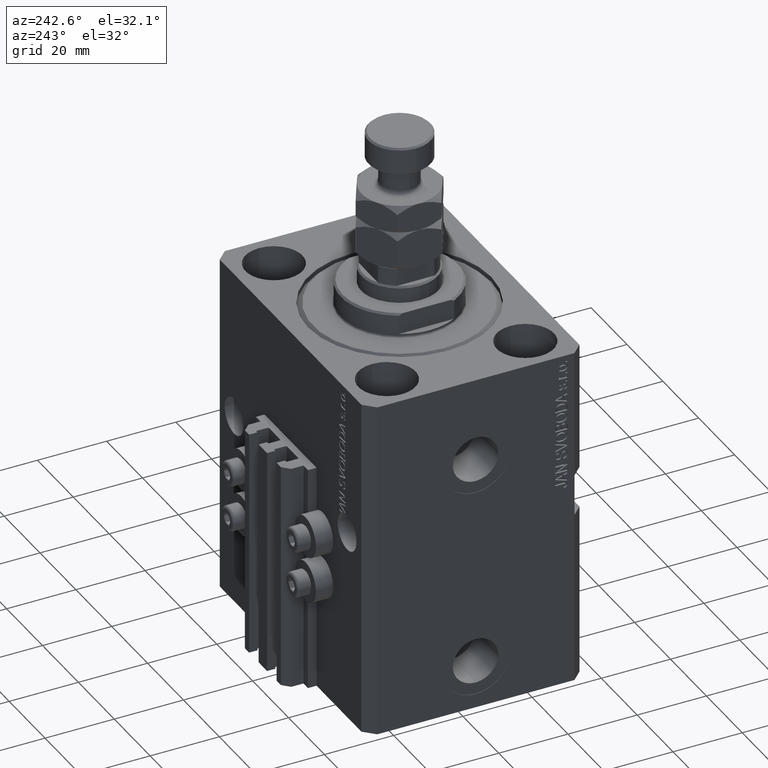
[diagram: clean part render]
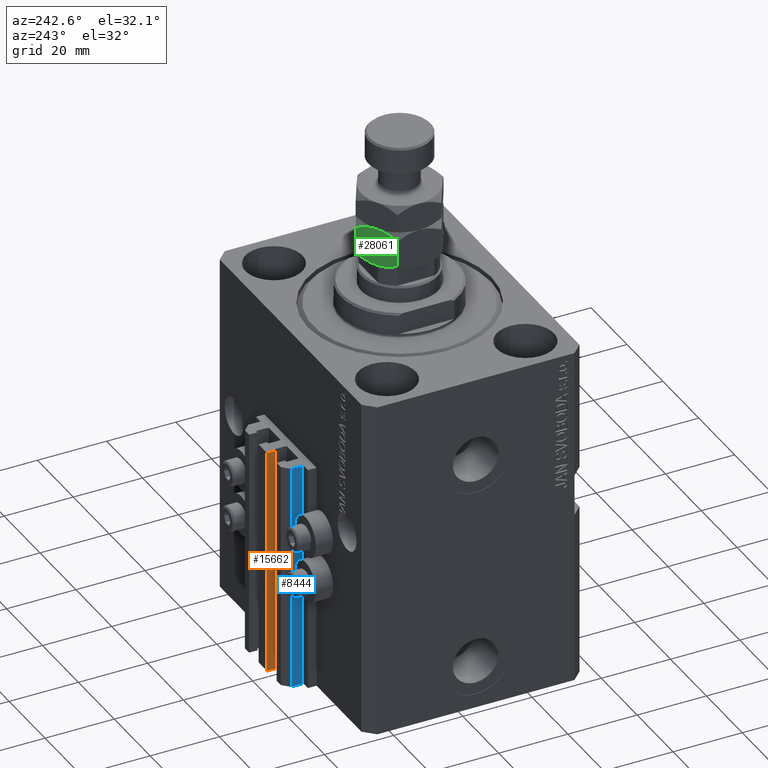
[diagram: same view with three faces highlighted in distinct colors, each labeled with its STEP entity id]
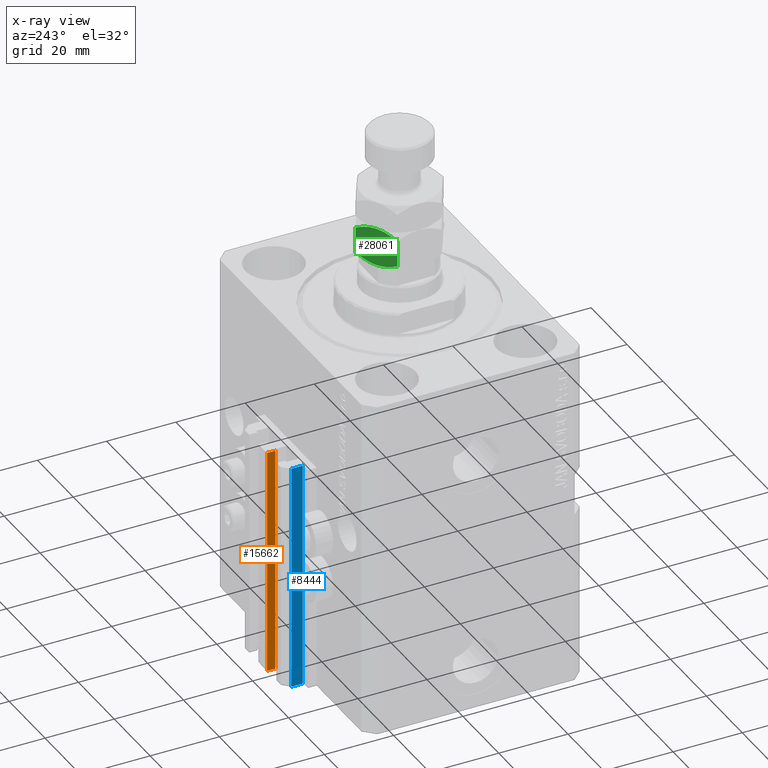
[diagram: x-ray of the same camera — body ghosted, the three highlighted faces saturated]
A machine part, auxiliary view with three faces highlighted in distinct colors.
The next image is the same camera in x-ray (body ghosted, the three faces saturated) — at least one of them is partly hidden behind the body in this view.
Their STEP definitions:

[orange] entity #15662 — the highlighted planar face has unit normal (-1, -0, 0).
#4268 = CARTESIAN_POINT ( 'NONE',  ( -2.350000000000003197, 37.10000000000000853, -33.00000000000000000 ) ) ;
#5549 = EDGE_CURVE ( 'NONE', #37249, #19662, #29933, .T. ) ;
#7285 = CARTESIAN_POINT ( 'NONE',  ( -2.350000000000003642, 39.50000000000000711, -99.00000000000000000 ) ) ;
#8761 = CARTESIAN_POINT ( 'NONE',  ( -2.350000000000003197, 37.10000000000000853, -99.00000000000000000 ) ) ;
#8820 = LINE ( 'NONE', #46186, #40017 ) ;
#10966 = DIRECTION ( 'NONE',  ( 1.807003620809174632E-16, -1.000000000000000000, 0.000000000000000000 ) ) ;
#11251 = CARTESIAN_POINT ( 'NONE',  ( -2.350000000000003642, 39.50000000000000711, -33.00000000000000000 ) ) ;
#12090 = ORIENTED_EDGE ( 'NONE', *, *, #35290, .F. ) ;
#13441 = CARTESIAN_POINT ( 'NONE',  ( -2.350000000000003197, 37.10000000000000853, -99.00000000000000000 ) ) ;
#14024 = EDGE_CURVE ( 'NONE', #19662, #31939, #36079, .T. ) ;
#14848 = CARTESIAN_POINT ( 'NONE',  ( -2.350000000000003642, 39.50000000000000711, -99.00000000000000000 ) ) ;
#15623 = VECTOR ( 'NONE', #28937, 1000.000000000000000 ) ;
#15662 = ADVANCED_FACE ( 'NONE', ( #45320 ), #30111, .T. ) ;
#17167 = AXIS2_PLACEMENT_3D ( 'NONE', #45077, #33353, #10966 ) ;
#17184 = DIRECTION ( 'NONE',  ( 0.000000000000000000, 0.000000000000000000, 1.000000000000000000 ) ) ;
#19288 = VECTOR ( 'NONE', #22971, 1000.000000000000000 ) ;
#19662 = VERTEX_POINT ( 'NONE', #8761 ) ;
#21498 = VERTEX_POINT ( 'NONE', #11251 ) ;
#22971 = DIRECTION ( 'NONE',  ( 0.000000000000000000, 0.000000000000000000, 1.000000000000000000 ) ) ;
#23213 = CARTESIAN_POINT ( 'NONE',  ( -2.350000000000003642, 39.50000000000000711, -99.00000000000000000 ) ) ;
#27102 = ORIENTED_EDGE ( 'NONE', *, *, #5549, .T. ) ;
#28937 = DIRECTION ( 'NONE',  ( 1.807003620809174632E-16, -1.000000000000000000, 0.000000000000000000 ) ) ;
#29571 = EDGE_LOOP ( 'NONE', ( #12090, #40795, #27102, #47385 ) ) ;
#29933 = LINE ( 'NONE', #7285, #15623 ) ;
#30111 = PLANE ( 'NONE',  #17167 ) ;
#30665 = VECTOR ( 'NONE', #17184, 1000.000000000000000 ) ;
#30914 = LINE ( 'NONE', #23213, #19288 ) ;
#31478 = DIRECTION ( 'NONE',  ( 1.807003620809174632E-16, -1.000000000000000000, 0.000000000000000000 ) ) ;
#31939 = VERTEX_POINT ( 'NONE', #4268 ) ;
#33353 = DIRECTION ( 'NONE',  ( -1.000000000000000000, -1.807003620809174632E-16, 0.000000000000000000 ) ) ;
#35290 = EDGE_CURVE ( 'NONE', #21498, #31939, #8820, .T. ) ;
#36079 = LINE ( 'NONE', #13441, #30665 ) ;
#37249 = VERTEX_POINT ( 'NONE', #14848 ) ;
#40017 = VECTOR ( 'NONE', #31478, 1000.000000000000000 ) ;
#40795 = ORIENTED_EDGE ( 'NONE', *, *, #45574, .F. ) ;
#45077 = CARTESIAN_POINT ( 'NONE',  ( -2.350000000000003642, 39.50000000000000711, -99.00000000000000000 ) ) ;
#45320 = FACE_OUTER_BOUND ( 'NONE', #29571, .T. ) ;
#45574 = EDGE_CURVE ( 'NONE', #37249, #21498, #30914, .T. ) ;
#46186 = CARTESIAN_POINT ( 'NONE',  ( -2.350000000000003642, 39.50000000000000711, -33.00000000000000000 ) ) ;
#47385 = ORIENTED_EDGE ( 'NONE', *, *, #14024, .T. ) ;

[blue] entity #8444 — the highlighted planar face has unit normal (-1, 0, 0).
#2843 = CARTESIAN_POINT ( 'NONE',  ( -12.00000000000000000, 34.19999999999999574, -99.00000000000000000 ) ) ;
#3092 = PLANE ( 'NONE',  #48277 ) ;
#3985 = LINE ( 'NONE', #19177, #35346 ) ;
#5786 = VECTOR ( 'NONE', #11078, 1000.000000000000000 ) ;
#6079 = FACE_OUTER_BOUND ( 'NONE', #34976, .T. ) ;
#6487 = CARTESIAN_POINT ( 'NONE',  ( -12.00000000000000000, 34.19999999999999574, -33.00000000000000000 ) ) ;
#8444 = ADVANCED_FACE ( 'NONE', ( #6079 ), #3092, .T. ) ;
#9096 = DIRECTION ( 'NONE',  ( 0.000000000000000000, -1.000000000000000000, 0.000000000000000000 ) ) ;
#9363 = CARTESIAN_POINT ( 'NONE',  ( -12.00000000000000000, 37.49999999999999289, -99.00000000000000000 ) ) ;
#11078 = DIRECTION ( 'NONE',  ( 0.000000000000000000, -1.000000000000000000, 0.000000000000000000 ) ) ;
#11677 = EDGE_CURVE ( 'NONE', #19115, #37576, #3985, .T. ) ;
#13886 = CARTESIAN_POINT ( 'NONE',  ( -12.00000000000000000, 34.19999999999999574, -99.00000000000000000 ) ) ;
#14679 = VERTEX_POINT ( 'NONE', #13886 ) ;
#16478 = VERTEX_POINT ( 'NONE', #6487 ) ;
#17798 = CARTESIAN_POINT ( 'NONE',  ( -12.00000000000000000, 37.49999999999999289, -99.00000000000000000 ) ) ;
#19115 = VERTEX_POINT ( 'NONE', #9363 ) ;
#19177 = CARTESIAN_POINT ( 'NONE',  ( -12.00000000000000000, 37.49999999999999289, -99.00000000000000000 ) ) ;
#22143 = ORIENTED_EDGE ( 'NONE', *, *, #11677, .F. ) ;
#24624 = EDGE_CURVE ( 'NONE', #14679, #16478, #44178, .T. ) ;
#26134 = VECTOR ( 'NONE', #37197, 1000.000000000000000 ) ;
#28262 = LINE ( 'NONE', #43208, #34249 ) ;
#30232 = LINE ( 'NONE', #33218, #5786 ) ;
#32764 = EDGE_CURVE ( 'NONE', #19115, #14679, #28262, .T. ) ;
#33218 = CARTESIAN_POINT ( 'NONE',  ( -12.00000000000000000, 37.49999999999999289, -33.00000000000000000 ) ) ;
#33676 = CARTESIAN_POINT ( 'NONE',  ( -12.00000000000000000, 37.49999999999999289, -33.00000000000000000 ) ) ;
#34249 = VECTOR ( 'NONE', #9096, 1000.000000000000000 ) ;
#34657 = ORIENTED_EDGE ( 'NONE', *, *, #24624, .T. ) ;
#34976 = EDGE_LOOP ( 'NONE', ( #47525, #22143, #37878, #34657 ) ) ;
#35346 = VECTOR ( 'NONE', #41585, 1000.000000000000000 ) ;
#37197 = DIRECTION ( 'NONE',  ( 0.000000000000000000, 0.000000000000000000, 1.000000000000000000 ) ) ;
#37576 = VERTEX_POINT ( 'NONE', #33676 ) ;
#37878 = ORIENTED_EDGE ( 'NONE', *, *, #32764, .T. ) ;
#40442 = DIRECTION ( 'NONE',  ( 0.000000000000000000, 0.000000000000000000, 1.000000000000000000 ) ) ;
#41585 = DIRECTION ( 'NONE',  ( 0.000000000000000000, 0.000000000000000000, 1.000000000000000000 ) ) ;
#43208 = CARTESIAN_POINT ( 'NONE',  ( -12.00000000000000000, 37.49999999999999289, -99.00000000000000000 ) ) ;
#44178 = LINE ( 'NONE', #2843, #26134 ) ;
#45885 = EDGE_CURVE ( 'NONE', #37576, #16478, #30232, .T. ) ;
#47525 = ORIENTED_EDGE ( 'NONE', *, *, #45885, .F. ) ;
#48277 = AXIS2_PLACEMENT_3D ( 'NONE', #17798, #48910, #40442 ) ;
#48910 = DIRECTION ( 'NONE',  ( -1.000000000000000000, 0.000000000000000000, 0.000000000000000000 ) ) ;

[green] entity #28061 — the highlighted planar face has unit normal (0.5, -0.866, 0).
#33 = CARTESIAN_POINT ( 'NONE',  ( -9.255521992360788985, 7.358027808391769398, 0.7806233875467772920 ) ) ;
#89 = DIRECTION ( 'NONE',  ( 0.8660254037844389297, 0.4999999999999992784, 0.000000000000000000 ) ) ;
#577 = DIRECTION ( 'NONE',  ( 0.4999999999999993339, -0.8660254037844390407, 0.000000000000000000 ) ) ;
#598 = VERTEX_POINT ( 'NONE', #11866 ) ;
#647 = CARTESIAN_POINT ( 'NONE',  ( -11.00000000000000000, 6.350852961085890591, 11.00000000000000000 ) ) ;
#762 = EDGE_CURVE ( 'NONE', #10501, #41187, #10349, .T. ) ;
#2698 = ORIENTED_EDGE ( 'NONE', *, *, #33251, .F. ) ;
#2761 = VERTEX_POINT ( 'NONE', #45829 ) ;
#3195 = DIRECTION ( 'NONE',  ( -0.000000000000000000, -0.000000000000000000, -1.000000000000000000 ) ) ;
#3777 = CARTESIAN_POINT ( 'NONE',  ( -5.981709287746635795, 9.248164454677164414, 1.734723475976807094E-15 ) ) ;
#4119 = CARTESIAN_POINT ( 'NONE',  ( -5.499999999999990230, 9.526279441628824785, 11.00000000000000000 ) ) ;
#4152 = B_SPLINE_CURVE_WITH_KNOTS ( 'NONE', 3,
 ( #37048, #10418, #49005, #29576, #34046, #48268 ),
 .UNSPECIFIED., .F., .F.,
 ( 4, 2, 4 ),
 ( 0.006583488920348303831, 0.009852050593448711396, 0.01312061226654911809 ),
 .UNSPECIFIED. ) ;
#6653 = CARTESIAN_POINT ( 'NONE',  ( -3.579894028994817123, 10.63485314086127786, 10.79187792513292798 ) ) ;
#7755 = CARTESIAN_POINT ( 'NONE',  ( -7.884967580346608607, 8.149317767107183030, 0.3282192120904074417 ) ) ;
#7802 = ORIENTED_EDGE ( 'NONE', *, *, #14098, .F. ) ;
#8034 = ORIENTED_EDGE ( 'NONE', *, *, #26520, .F. ) ;
#10349 = B_SPLINE_CURVE_WITH_KNOTS ( 'NONE', 3,
 ( #45845, #37637, #33, #7755, #30155, #23424, #3777, #11988 ),
 .UNSPECIFIED., .F., .F.,
 ( 4, 2, 2, 4 ),
 ( 2.544311317612473652E-07, 0.003291871675740032539, 0.004937680298044168185, 0.006583488920348303831 ),
 .UNSPECIFIED. ) ;
#10418 = CARTESIAN_POINT ( 'NONE',  ( -4.543329525579419048, 10.07861339756131791, 1.768604793866978714E-15 ) ) ;
#10452 = LINE ( 'NONE', #647, #40985 ) ;
#10501 = VERTEX_POINT ( 'NONE', #13395 ) ;
#11799 = FACE_OUTER_BOUND ( 'NONE', #24191, .T. ) ;
#11866 = CARTESIAN_POINT ( 'NONE',  ( -11.00000000000000000, 6.350852961085890591, 9.298294077828234805 ) ) ;
#11988 = CARTESIAN_POINT ( 'NONE',  ( -5.499999999999992895, 9.526279441628830114, 0.000000000000000000 ) ) ;
#11996 = EDGE_CURVE ( 'NONE', #2761, #16912, #37298, .T. ) ;
#13395 = CARTESIAN_POINT ( 'NONE',  ( -11.00000000000000000, 6.350852961085892368, 1.701705922171765195 ) ) ;
#14098 = EDGE_CURVE ( 'NONE', #598, #10501, #10452, .T. ) ;
#14890 = CARTESIAN_POINT ( 'NONE',  ( -1.744478007639206130, 11.69453107486589083, 10.21937661245322637 ) ) ;
#15338 = CARTESIAN_POINT ( 'NONE',  ( -11.00000000000000000, 6.350852961085890591, 9.298294077828234805 ) ) ;
#16912 = VERTEX_POINT ( 'NONE', #35255 ) ;
#17830 = VERTEX_POINT ( 'NONE', #24117 ) ;
#18370 = CARTESIAN_POINT ( 'NONE',  ( -5.499999999999990230, 9.526279441628824785, 11.00000000000000000 ) ) ;
#19020 = PLANE ( 'NONE',  #30193 ) ;
#19211 = EDGE_CURVE ( 'NONE', #17830, #598, #37351, .T. ) ;
#23424 = CARTESIAN_POINT ( 'NONE',  ( -6.470625887979888802, 8.965888323921223702, 0.04365929743512723255 ) ) ;
#24117 = CARTESIAN_POINT ( 'NONE',  ( -5.499999999999990230, 9.526279441628824785, 11.00000000000000000 ) ) ;
#24191 = EDGE_LOOP ( 'NONE', ( #37513, #7802, #44581, #2698, #27848, #8034 ) ) ;
#25594 = CARTESIAN_POINT ( 'NONE',  ( -4.529374112020101428, 10.08667055933643830, 10.95634070256487469 ) ) ;
#26520 = EDGE_CURVE ( 'NONE', #41187, #16912, #4152, .T. ) ;
#27848 = ORIENTED_EDGE ( 'NONE', *, *, #11996, .T. ) ;
#28061 = ADVANCED_FACE ( 'NONE', ( #11799 ), #19020, .F. ) ;
#29308 = CARTESIAN_POINT ( 'NONE',  ( -3.115032419653383400, 10.90324111615047542, 10.67178078790959539 ) ) ;
#29576 = CARTESIAN_POINT ( 'NONE',  ( -1.748214531935804672, 11.69237379155741330, 0.7776848045220272621 ) ) ;
#30155 = CARTESIAN_POINT ( 'NONE',  ( -7.420105971005176215, 8.417705742396382362, 0.2081220748670755127 ) ) ;
#30193 = AXIS2_PLACEMENT_3D ( 'NONE', #34192, #577, #89 ) ;
#30501 = CARTESIAN_POINT ( 'NONE',  ( -7.397073880711845462, 8.431003325927239445, 10.83109139163524404 ) ) ;
#31016 = DIRECTION ( 'NONE',  ( -0.000000000000000000, -0.000000000000000000, -1.000000000000000000 ) ) ;
#31539 = CARTESIAN_POINT ( 'NONE',  ( -5.499999999999992895, 9.526279441628830114, 0.000000000000000000 ) ) ;
#33043 = CARTESIAN_POINT ( 'NONE',  ( -5.018290712253354435, 9.804394428580495813, 11.00000000000000178 ) ) ;
#33251 = EDGE_CURVE ( 'NONE', #2761, #17830, #34056, .T. ) ;
#33741 = CARTESIAN_POINT ( 'NONE',  ( -6.456670474420569406, 8.973945485696344093, 11.00000000000000000 ) ) ;
#34046 = CARTESIAN_POINT ( 'NONE',  ( -0.8614806024966418230, 12.20432986441868728, 1.204329864418604235 ) ) ;
#34056 = B_SPLINE_CURVE_WITH_KNOTS ( 'NONE', 3,
 ( #36771, #48990, #14890, #29308, #6653, #25594, #33043, #18370 ),
 .UNSPECIFIED., .F., .F.,
 ( 4, 2, 2, 4 ),
 ( 2.544311317609508508E-07, 0.003291871675740026034, 0.004937680298044156910, 0.006583488920348289086 ),
 .UNSPECIFIED. ) ;
#34192 = CARTESIAN_POINT ( 'NONE',  ( 0.000000000000000000, 12.70170592217176342, 11.00000000000000000 ) ) ;
#35255 = CARTESIAN_POINT ( 'NONE',  ( 9.006588997586899406E-16, 12.70170592217176342, 1.701705922171758312 ) ) ;
#36771 = CARTESIAN_POINT ( 'NONE',  ( -4.327962126576701651E-16, 12.70170592217176342, 9.298294077828241910 ) ) ;
#37048 = CARTESIAN_POINT ( 'NONE',  ( -5.499999999999992895, 9.526279441628830114, 0.000000000000000000 ) ) ;
#37052 = CARTESIAN_POINT ( 'NONE',  ( 0.000000000000000000, 12.70170592217176342, 11.00000000000000000 ) ) ;
#37298 = LINE ( 'NONE', #37052, #39338 ) ;
#37351 = B_SPLINE_CURVE_WITH_KNOTS ( 'NONE', 3,
 ( #4119, #33741, #30501, #45699, #45461, #15338 ),
 .UNSPECIFIED., .F., .F.,
 ( 4, 2, 4 ),
 ( 0.006583488920348289086, 0.009852050593448704457, 0.01312061226654911983 ),
 .UNSPECIFIED. ) ;
#37513 = ORIENTED_EDGE ( 'NONE', *, *, #762, .F. ) ;
#37637 = CARTESIAN_POINT ( 'NONE',  ( -10.13752086928278118, 6.848805519375908979, 1.203753363881748362 ) ) ;
#39338 = VECTOR ( 'NONE', #3195, 1000.000000000000000 ) ;
#40985 = VECTOR ( 'NONE', #31016, 1000.000000000000000 ) ;
#41187 = VERTEX_POINT ( 'NONE', #31539 ) ;
#44581 = ORIENTED_EDGE ( 'NONE', *, *, #19211, .F. ) ;
#45461 = CARTESIAN_POINT ( 'NONE',  ( -10.13851939750335696, 6.848229018838968507, 9.795670135581390880 ) ) ;
#45699 = CARTESIAN_POINT ( 'NONE',  ( -9.251785468064188223, 7.360185091700242488, 10.22231519547797340 ) ) ;
#45829 = CARTESIAN_POINT ( 'NONE',  ( -4.327962126576701651E-16, 12.70170592217176342, 9.298294077828241910 ) ) ;
#45845 = CARTESIAN_POINT ( 'NONE',  ( -11.00000000000000000, 6.350852961085892368, 1.701705922171765195 ) ) ;
#48268 = CARTESIAN_POINT ( 'NONE',  ( 9.006588997586899406E-16, 12.70170592217176342, 1.701705922171758312 ) ) ;
#48990 = CARTESIAN_POINT ( 'NONE',  ( -0.8624791307172121613, 12.20375336388174681, 9.796246636118258522 ) ) ;
#49005 = CARTESIAN_POINT ( 'NONE',  ( -3.602926119288147433, 10.62155555733042434, 0.1689086083647601266 ) ) ;